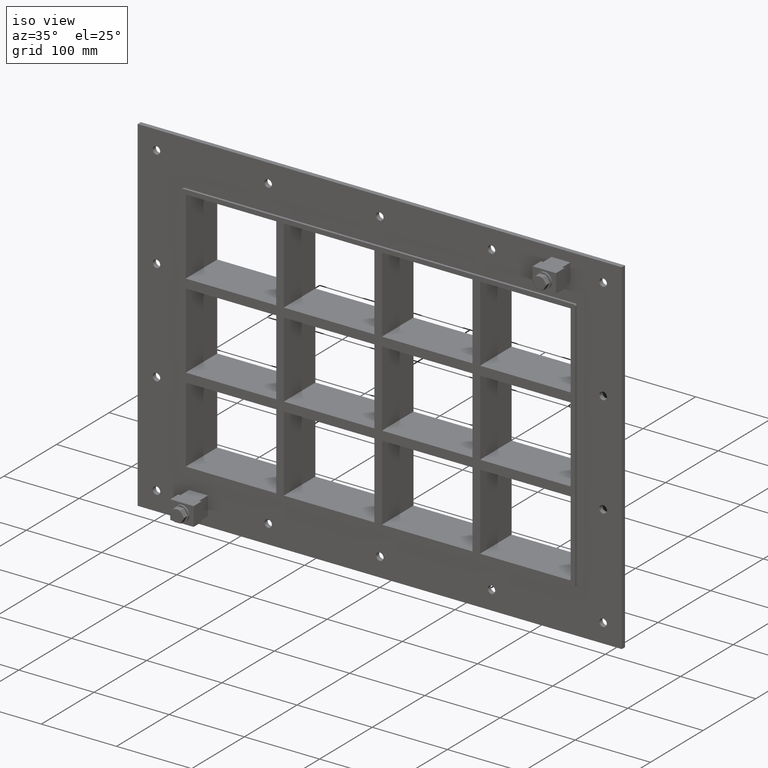
[diagram: clean part render]
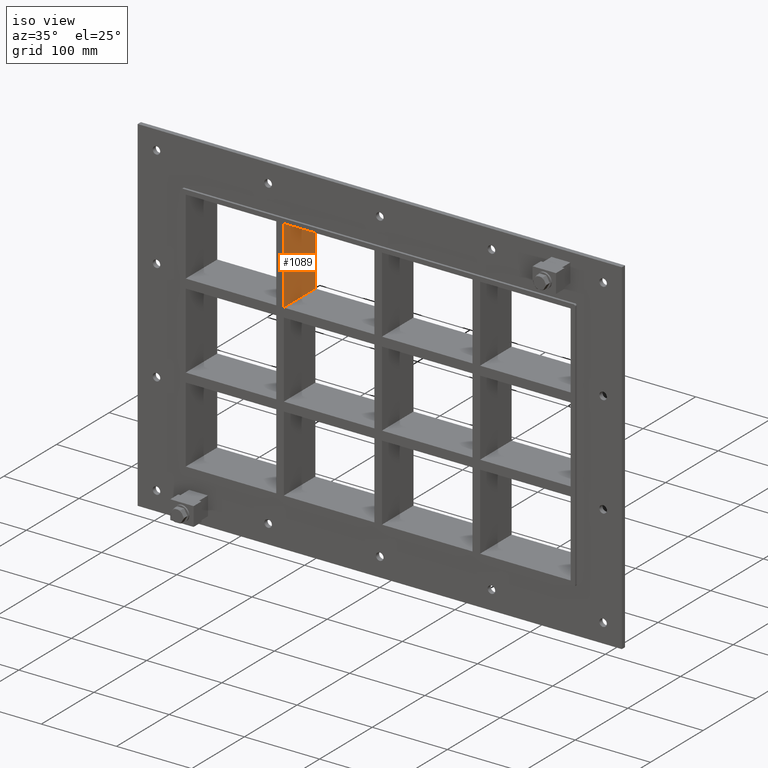
[diagram: same view with one face highlighted and labeled with its STEP entity id]
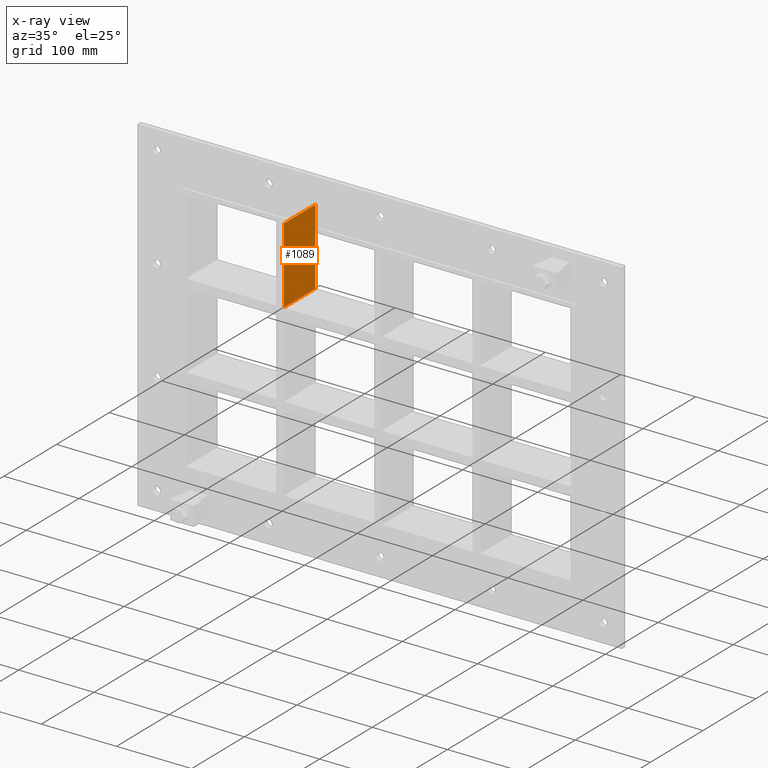
[diagram: x-ray of the same camera — body ghosted, the highlighted face saturated]
A machine part, iso view. The second image highlights one B-rep face of the part: STEP entity #1089.
The next image is the same camera in x-ray: the body ghosted, the highlighted face saturated — about 0% of this face is hidden behind the body in this view.
In plain terms, the highlighted planar face has unit normal (1, 0, 0).
Its self-contained STEP definition (entity closure, byte-faithful):
#715=CARTESIAN_POINT('',(-125.49999999999272,57.0,62.500000000000462));
#716=VERTEX_POINT('',#715);
#723=CARTESIAN_POINT('',(-125.49999999999272,-3.0,62.500000000000462));
#724=VERTEX_POINT('',#723);
#725=CARTESIAN_POINT('',(-125.49999999999272,-3.0,62.500000000000462));
#726=DIRECTION('',(0.0,1.0,0.0));
#727=VECTOR('',#726,60.0);
#728=LINE('',#725,#727);
#729=EDGE_CURVE('',#724,#716,#728,.T.);
#1059=CARTESIAN_POINT('',(-125.49999999999272,-3.0,163.5));
#1060=DIRECTION('',(1.0,0.0,0.0));
#1061=DIRECTION('',(0.0,0.0,-1.0));
#1062=AXIS2_PLACEMENT_3D('',#1059,#1060,#1061);
#1063=PLANE('',#1062);
#1064=ORIENTED_EDGE('',*,*,#729,.T.);
#1065=CARTESIAN_POINT('',(-125.49999999999272,57.0,163.5));
#1066=VERTEX_POINT('',#1065);
#1067=CARTESIAN_POINT('',(-125.49999999999272,57.0,163.5));
#1068=DIRECTION('',(0.0,0.0,-1.0));
#1069=VECTOR('',#1068,100.99999999999955);
#1070=LINE('',#1067,#1069);
#1071=EDGE_CURVE('',#1066,#716,#1070,.T.);
#1072=ORIENTED_EDGE('',*,*,#1071,.F.);
#1073=CARTESIAN_POINT('',(-125.49999999999272,-3.0,163.5));
#1074=VERTEX_POINT('',#1073);
#1075=CARTESIAN_POINT('',(-125.49999999999272,-3.0,163.5));
#1076=DIRECTION('',(0.0,1.0,0.0));
#1077=VECTOR('',#1076,60.000000000000007);
#1078=LINE('',#1075,#1077);
#1079=EDGE_CURVE('',#1074,#1066,#1078,.T.);
#1080=ORIENTED_EDGE('',*,*,#1079,.F.);
#1081=CARTESIAN_POINT('',(-125.49999999999272,-3.0,163.5));
#1082=DIRECTION('',(0.0,0.0,-1.0));
#1083=VECTOR('',#1082,100.99999999999955);
#1084=LINE('',#1081,#1083);
#1085=EDGE_CURVE('',#1074,#724,#1084,.T.);
#1086=ORIENTED_EDGE('',*,*,#1085,.T.);
#1087=EDGE_LOOP('',(#1064,#1072,#1080,#1086));
#1088=FACE_OUTER_BOUND('',#1087,.T.);
#1089=ADVANCED_FACE('',(#1088),#1063,.T.);